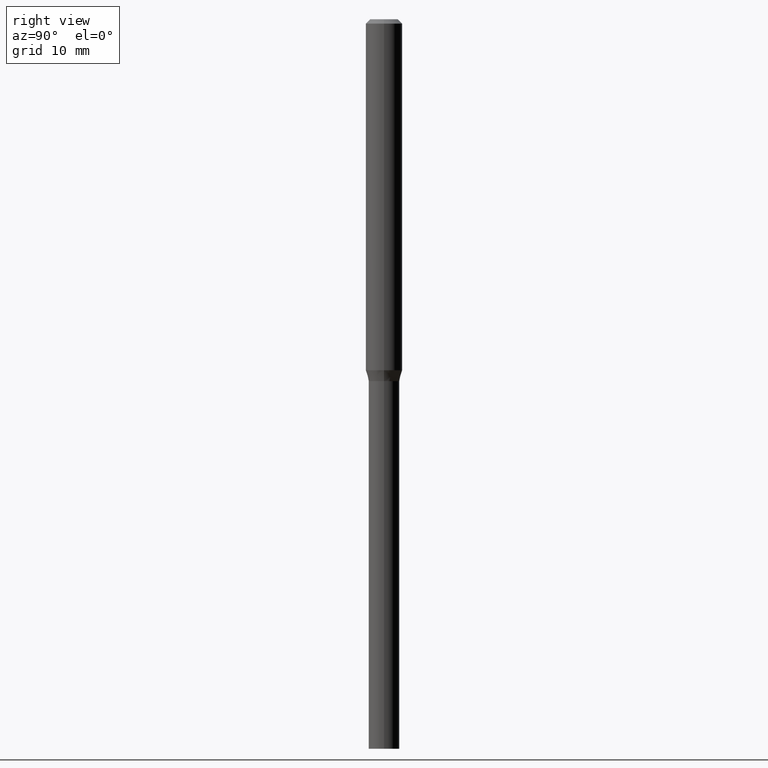
[diagram: clean part render]
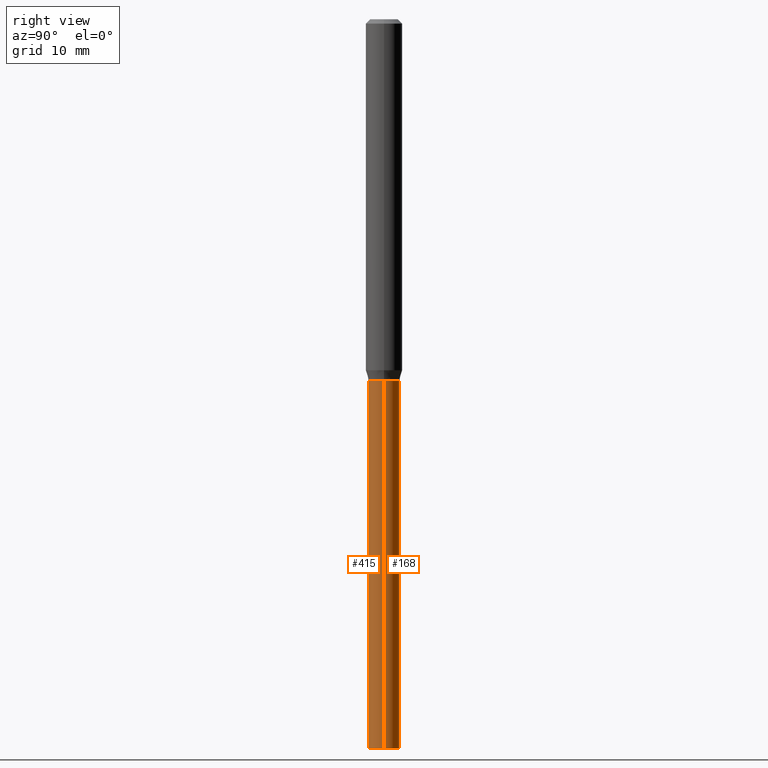
[diagram: same view with one multi-face feature highlighted, each face labeled with its STEP entity id]
A machine part, right view. The highlighted faces form ONE feature: a constant-radius fillet chain: 2 tangent blend faces with common blend radius 1.3335 mm. The faces share edges in the B-rep.
Their STEP definitions:
[1] entity #415 (Cylinder):
#1 = DIRECTION ( 'NONE',  ( 1.000000000000000000, -6.982962677686265922E-15, 4.876176775795935232E-29 ) ) ;
#7 = ORIENTED_EDGE ( 'NONE', *, *, #183, .F. ) ;
#39 = DIRECTION ( 'NONE',  ( -2.445468806185136597E-29, 3.491481338843145583E-15, 1.000000000000000000 ) ) ;
#43 = ORIENTED_EDGE ( 'NONE', *, *, #388, .F. ) ;
#44 = EDGE_LOOP ( 'NONE', ( #7, #417, #189, #43 ) ) ;
#53 = CARTESIAN_POINT ( 'NONE',  ( -0.05249999999999999806, -6.156035167362630348E-15, -2.500000000000000000 ) ) ;
#80 = AXIS2_PLACEMENT_3D ( 'NONE', #112, #389, #180 ) ;
#81 = DIRECTION ( 'NONE',  ( -2.445468806185136597E-29, 3.491481338843145583E-15, 1.000000000000000000 ) ) ;
#91 = VECTOR ( 'NONE', #435, 39.37007874015748143 ) ;
#112 = CARTESIAN_POINT ( 'NONE',  ( 3.032381319669569761E-29, -4.329436860165500822E-15, -1.240000000000000213 ) ) ;
#117 = VERTEX_POINT ( 'NONE', #428 ) ;
#128 = CARTESIAN_POINT ( 'NONE',  ( 6.113672015462842613E-29, -8.728703347107864943E-15, -2.500000000000000000 ) ) ;
#130 = CARTESIAN_POINT ( 'NONE',  ( 0.05249999999999999806, -3.666055405785289629E-16, 2.559992807292866011E-30 ) ) ;
#180 = DIRECTION ( 'NONE',  ( 1.000000000000000000, -6.982962677686268288E-15, 0.000000000000000000 ) ) ;
#183 = EDGE_CURVE ( 'NONE', #222, #117, #455, .T. ) ;
#189 = ORIENTED_EDGE ( 'NONE', *, *, #370, .T. ) ;
#194 = DIRECTION ( 'NONE',  ( 1.000000000000000000, -6.982962677686268288E-15, 0.000000000000000000 ) ) ;
#202 = CARTESIAN_POINT ( 'NONE',  ( 0.05249999999999999806, -9.095308887686393314E-15, -2.500000000000000000 ) ) ;
#209 = CARTESIAN_POINT ( 'NONE',  ( -0.05249999999999999806, 3.730349362740525838E-16, -2.582440922383825311E-30 ) ) ;
#213 = AXIS2_PLACEMENT_3D ( 'NONE', #257, #39, #1 ) ;
#222 = VERTEX_POINT ( 'NONE', #53 ) ;
#241 = EDGE_CURVE ( 'NONE', #222, #332, #360, .T. ) ;
#254 = DIRECTION ( 'NONE',  ( -2.445468806185136877E-29, 3.491481338843145188E-15, 1.000000000000000000 ) ) ;
#257 = CARTESIAN_POINT ( 'NONE',  ( 0.000000000000000000, 0.000000000000000000, 0.000000000000000000 ) ) ;
#281 = CARTESIAN_POINT ( 'NONE',  ( 0.05249999999999999806, -4.696042400744029982E-15, -1.240000000000000213 ) ) ;
#323 = FACE_OUTER_BOUND ( 'NONE', #44, .T. ) ;
#332 = VERTEX_POINT ( 'NONE', #202 ) ;
#341 = LINE ( 'NONE', #130, #91 ) ;
#360 = CIRCLE ( 'NONE', #445, 0.05249999999999999806 ) ;
#370 = EDGE_CURVE ( 'NONE', #332, #437, #341, .T. ) ;
#388 = EDGE_CURVE ( 'NONE', #117, #437, #449, .T. ) ;
#389 = DIRECTION ( 'NONE',  ( -2.445468806185136597E-29, 3.491481338843145583E-15, 1.000000000000000000 ) ) ;
#415 = ADVANCED_FACE ( 'NONE', ( #323 ), #460, .T. ) ;
#417 = ORIENTED_EDGE ( 'NONE', *, *, #241, .T. ) ;
#428 = CARTESIAN_POINT ( 'NONE',  ( -0.05249999999999999806, -6.156035167362630348E-15, -1.240000000000000213 ) ) ;
#435 = DIRECTION ( 'NONE',  ( -2.445468806185136877E-29, 3.491481338843145188E-15, 1.000000000000000000 ) ) ;
#437 = VERTEX_POINT ( 'NONE', #281 ) ;
#445 = AXIS2_PLACEMENT_3D ( 'NONE', #128, #81, #194 ) ;
#449 = CIRCLE ( 'NONE', #80, 0.05249999999999999806 ) ;
#454 = VECTOR ( 'NONE', #254, 39.37007874015748143 ) ;
#455 = LINE ( 'NONE', #209, #454 ) ;
#460 = CYLINDRICAL_SURFACE ( 'NONE', #213, 0.05249999999999999806 ) ;
[2] entity #168 (Cylinder):
#22 = EDGE_CURVE ( 'NONE', #332, #222, #186, .T. ) ;
#23 = DIRECTION ( 'NONE',  ( -2.445468806185136597E-29, 3.491481338843145583E-15, 1.000000000000000000 ) ) ;
#53 = CARTESIAN_POINT ( 'NONE',  ( -0.05249999999999999806, -6.156035167362630348E-15, -2.500000000000000000 ) ) ;
#59 = AXIS2_PLACEMENT_3D ( 'NONE', #107, #70, #315 ) ;
#70 = DIRECTION ( 'NONE',  ( -2.445468806185136597E-29, 3.491481338843145583E-15, 1.000000000000000000 ) ) ;
#84 = EDGE_LOOP ( 'NONE', ( #292, #162, #314, #120 ) ) ;
#86 = DIRECTION ( 'NONE',  ( -2.445468806185136597E-29, 3.491481338843145583E-15, 1.000000000000000000 ) ) ;
#91 = VECTOR ( 'NONE', #435, 39.37007874015748143 ) ;
#92 = CARTESIAN_POINT ( 'NONE',  ( 3.032381319669569761E-29, -4.329436860165500822E-15, -1.240000000000000213 ) ) ;
#107 = CARTESIAN_POINT ( 'NONE',  ( 0.000000000000000000, 0.000000000000000000, 0.000000000000000000 ) ) ;
#117 = VERTEX_POINT ( 'NONE', #428 ) ;
#120 = ORIENTED_EDGE ( 'NONE', *, *, #370, .F. ) ;
#130 = CARTESIAN_POINT ( 'NONE',  ( 0.05249999999999999806, -3.666055405785289629E-16, 2.559992807292866011E-30 ) ) ;
#133 = CARTESIAN_POINT ( 'NONE',  ( 6.113672015462842613E-29, -8.728703347107864943E-15, -2.500000000000000000 ) ) ;
#145 = CYLINDRICAL_SURFACE ( 'NONE', #59, 0.05249999999999999806 ) ;
#162 = ORIENTED_EDGE ( 'NONE', *, *, #183, .T. ) ;
#168 = ADVANCED_FACE ( 'NONE', ( #255 ), #145, .T. ) ;
#183 = EDGE_CURVE ( 'NONE', #222, #117, #455, .T. ) ;
#186 = CIRCLE ( 'NONE', #399, 0.05249999999999999806 ) ;
#190 = DIRECTION ( 'NONE',  ( 1.000000000000000000, -6.982962677686268288E-15, 0.000000000000000000 ) ) ;
#202 = CARTESIAN_POINT ( 'NONE',  ( 0.05249999999999999806, -9.095308887686393314E-15, -2.500000000000000000 ) ) ;
#209 = CARTESIAN_POINT ( 'NONE',  ( -0.05249999999999999806, 3.730349362740525838E-16, -2.582440922383825311E-30 ) ) ;
#222 = VERTEX_POINT ( 'NONE', #53 ) ;
#244 = CIRCLE ( 'NONE', #366, 0.05249999999999999806 ) ;
#252 = EDGE_CURVE ( 'NONE', #437, #117, #244, .T. ) ;
#254 = DIRECTION ( 'NONE',  ( -2.445468806185136877E-29, 3.491481338843145188E-15, 1.000000000000000000 ) ) ;
#255 = FACE_OUTER_BOUND ( 'NONE', #84, .T. ) ;
#279 = DIRECTION ( 'NONE',  ( 1.000000000000000000, -6.982962677686268288E-15, 0.000000000000000000 ) ) ;
#281 = CARTESIAN_POINT ( 'NONE',  ( 0.05249999999999999806, -4.696042400744029982E-15, -1.240000000000000213 ) ) ;
#292 = ORIENTED_EDGE ( 'NONE', *, *, #22, .T. ) ;
#314 = ORIENTED_EDGE ( 'NONE', *, *, #252, .F. ) ;
#315 = DIRECTION ( 'NONE',  ( 1.000000000000000000, -6.982962677686265922E-15, 4.876176775795935232E-29 ) ) ;
#332 = VERTEX_POINT ( 'NONE', #202 ) ;
#341 = LINE ( 'NONE', #130, #91 ) ;
#366 = AXIS2_PLACEMENT_3D ( 'NONE', #92, #86, #190 ) ;
#370 = EDGE_CURVE ( 'NONE', #332, #437, #341, .T. ) ;
#399 = AXIS2_PLACEMENT_3D ( 'NONE', #133, #23, #279 ) ;
#428 = CARTESIAN_POINT ( 'NONE',  ( -0.05249999999999999806, -6.156035167362630348E-15, -1.240000000000000213 ) ) ;
#435 = DIRECTION ( 'NONE',  ( -2.445468806185136877E-29, 3.491481338843145188E-15, 1.000000000000000000 ) ) ;
#437 = VERTEX_POINT ( 'NONE', #281 ) ;
#454 = VECTOR ( 'NONE', #254, 39.37007874015748143 ) ;
#455 = LINE ( 'NONE', #209, #454 ) ;